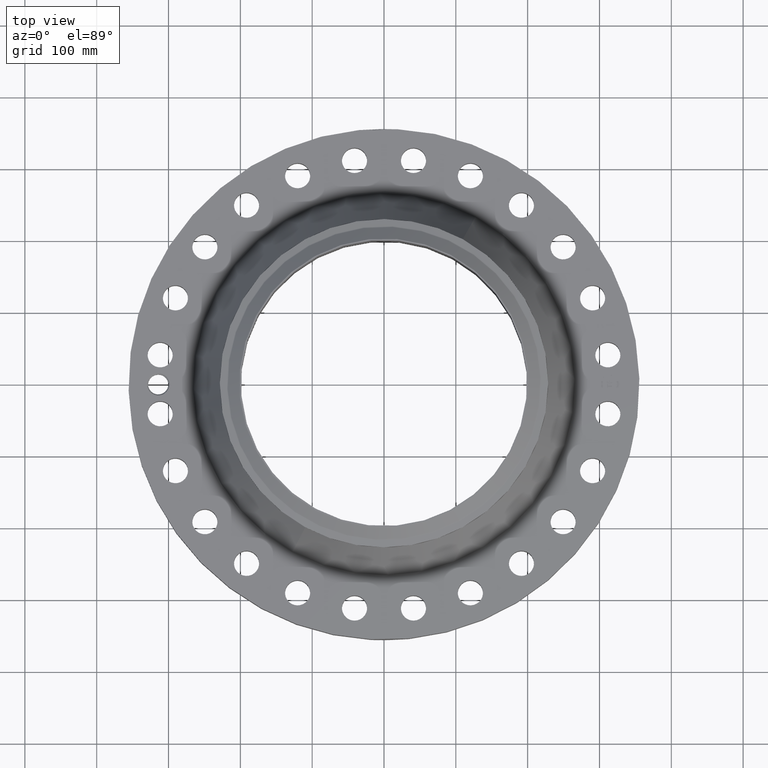
[diagram: clean part render]
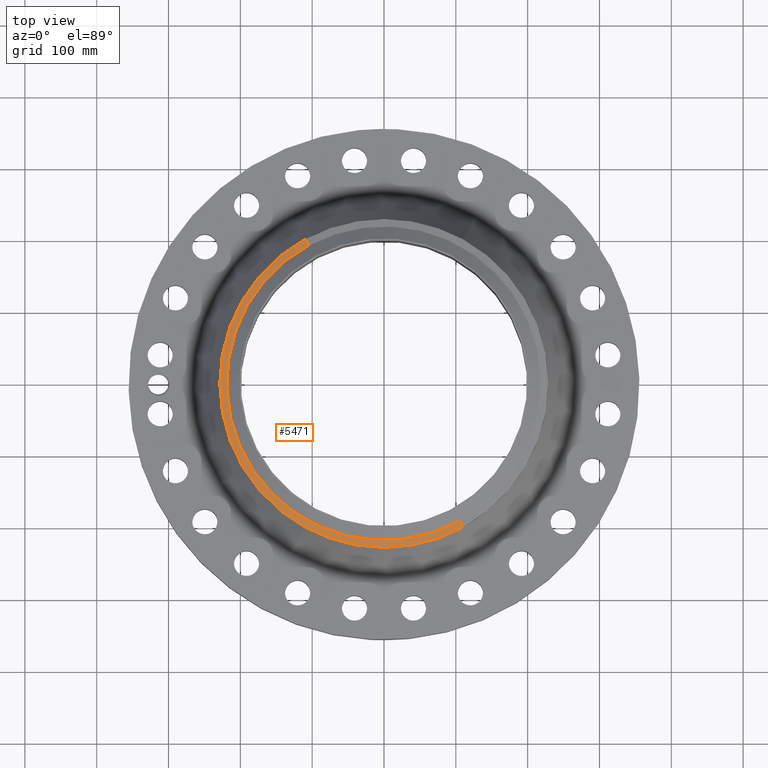
[diagram: same view with one face highlighted and labeled with its STEP entity id]
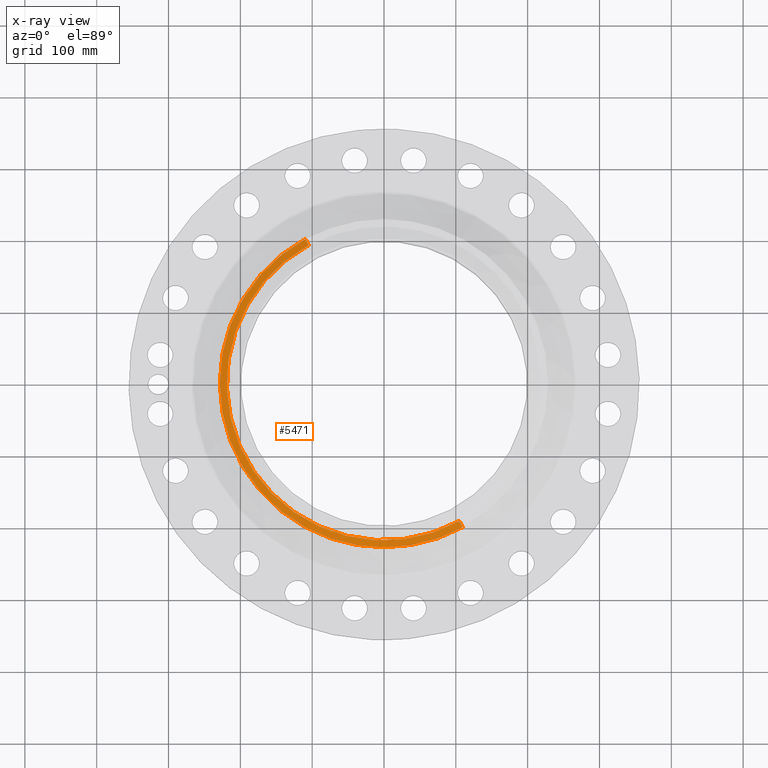
[diagram: x-ray of the same camera — body ghosted, the highlighted face saturated]
A machine part, top view. The second image highlights one B-rep face of the part: STEP entity #5471.
The next image is the same camera in x-ray: the body ghosted, the highlighted face saturated — about 0% of this face is hidden behind the body in this view.
In plain terms, the highlighted conical surface has half-angle 80 deg.
Its self-contained STEP definition (entity closure, byte-faithful):
#4283=AXIS2_PLACEMENT_3D('Circle Axis2P3D',#4281,#4282,$) ;
#4296=AXIS2_PLACEMENT_3D('Circle Axis2P3D',#4294,#4295,$) ;
#5430=AXIS2_PLACEMENT_3D('Cone Axis2P3D',#5427,#5428,#5429) ;
#5461=AXIS2_PLACEMENT_3D('Circle Axis2P3D',#5459,#5460,$) ;
#4264=CARTESIAN_POINT('Vertex',(-4.31482984746,-7.89824305704,5.72449883859)) ;
#4278=CARTESIAN_POINT('Vertex',(4.31482984746,-7.89824305704,5.72449883859)) ;
#4281=CARTESIAN_POINT('Axis2P3D Location',(0.,0.,5.72449883859)) ;
#4294=CARTESIAN_POINT('Axis2P3D Location',(0.,0.,5.72449883859)) ;
#4298=CARTESIAN_POINT('Vertex',(-4.31482984746,7.89824305704,5.72449883859)) ;
#5427=CARTESIAN_POINT('Axis2P3D Location',(0.,0.,5.79141601924)) ;
#5432=CARTESIAN_POINT('Line Origine',(-4.22385736766,7.73171904977,5.75795742891)) ;
#5436=CARTESIAN_POINT('Vertex',(-4.13288488787,7.5651950425,5.79141601924)) ;
#5443=CARTESIAN_POINT('Vertex',(4.13288488787,-7.5651950425,5.79141601924)) ;
#5446=CARTESIAN_POINT('Line Origine',(4.22385736766,-7.73171904977,5.75795742891)) ;
#5459=CARTESIAN_POINT('Axis2P3D Location',(0.,0.,5.79141601924)) ;
#4282=DIRECTION('Axis2P3D Direction',(0.,0.,-0.0393700787402)) ;
#4295=DIRECTION('Axis2P3D Direction',(0.,0.,-0.0393700787402)) ;
#5428=DIRECTION('Axis2P3D Direction',(-0.,-0.,-0.0393700787402)) ;
#5429=DIRECTION('Axis2P3D XDirection',(0.0188750212049,-0.0345504945626,0.)) ;
#5433=DIRECTION('Vector Direction',(-0.0185882672208,0.0340255949157,-0.00683654242783)) ;
#5447=DIRECTION('Vector Direction',(0.0185882672208,-0.0340255949157,-0.00683654242783)) ;
#5460=DIRECTION('Axis2P3D Direction',(0.,0.,-0.0393700787402)) ;
#5434=VECTOR('Line Direction',#5433,0.0393700787402) ;
#5448=VECTOR('Line Direction',#5447,0.0393700787402) ;
#5465=ORIENTED_EDGE('',*,*,#5450,.F.) ;
#5466=ORIENTED_EDGE('',*,*,#5463,.F.) ;
#5467=ORIENTED_EDGE('',*,*,#5438,.T.) ;
#5468=ORIENTED_EDGE('',*,*,#4300,.T.) ;
#5469=ORIENTED_EDGE('',*,*,#4285,.F.) ;
#5471=ADVANCED_FACE('PartBody',(#5470),#5431,.T.) ;
#4284=CIRCLE('generated circle',#4283,9.00000000004) ;
#4297=CIRCLE('generated circle',#4296,9.00000000004) ;
#5462=CIRCLE('generated circle',#5461,8.62049380996) ;
#5431=CONICAL_SURFACE('Cone',#5430,8.62049380996,1.3962634016) ;
#4285=EDGE_CURVE('',#4279,#4265,#4284,.T.) ;
#4300=EDGE_CURVE('',#4299,#4265,#4297,.F.) ;
#5438=EDGE_CURVE('',#5437,#4299,#5435,.T.) ;
#5450=EDGE_CURVE('',#5444,#4279,#5449,.T.) ;
#5463=EDGE_CURVE('',#5437,#5444,#5462,.F.) ;
#5464=EDGE_LOOP('',(#5465,#5466,#5467,#5468,#5469)) ;
#5470=FACE_OUTER_BOUND('',#5464,.T.) ;
#5435=LINE('Line',#5432,#5434) ;
#5449=LINE('Line',#5446,#5448) ;
#4265=VERTEX_POINT('',#4264) ;
#4279=VERTEX_POINT('',#4278) ;
#4299=VERTEX_POINT('',#4298) ;
#5437=VERTEX_POINT('',#5436) ;
#5444=VERTEX_POINT('',#5443) ;